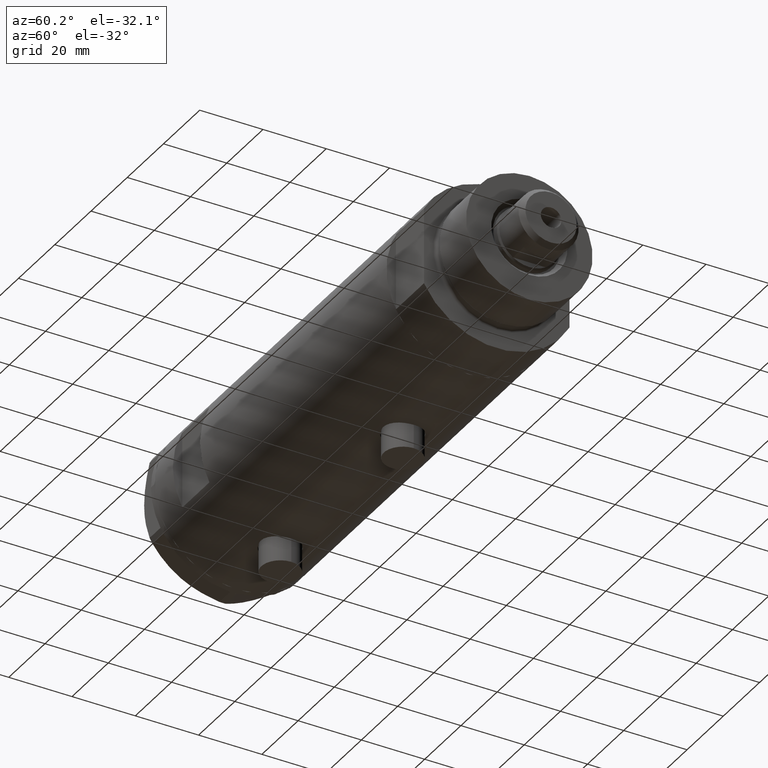
[diagram: clean part render]
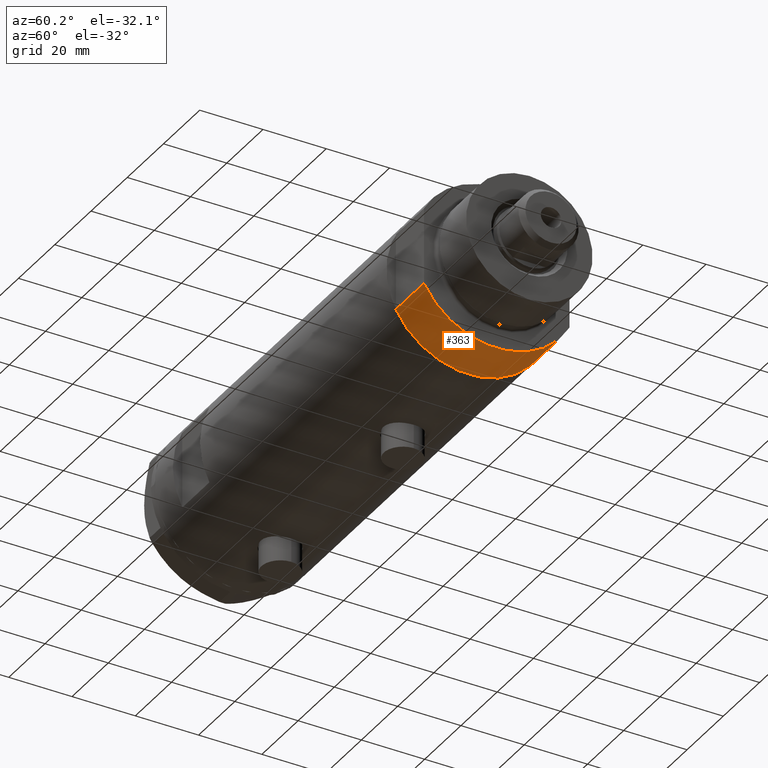
[diagram: same view with one face highlighted and labeled with its STEP entity id]
A machine part, auxiliary view. The second image highlights one B-rep face of the part: STEP entity #363.
In plain terms, the highlighted cylindrical surface (partial cylindrical patch) has radius 26 mm, axis along (-1, -0, 0).
Its self-contained STEP definition (entity closure, byte-faithful):
#98 = CARTESIAN_POINT ( 'NONE',  ( 12.12435565298214790, 23.00000000000000355, 15.50000000000000000 ) ) ;
#129 = VECTOR ( 'NONE', #1213, 1000.000000000000000 ) ;
#298 = DIRECTION ( 'NONE',  ( 0.000000000000000000, 0.000000000000000000, 1.000000000000000000 ) ) ;
#325 = EDGE_LOOP ( 'NONE', ( #3152, #4248, #1930, #3982 ) ) ;
#363 = ADVANCED_FACE ( 'NONE', ( #3960 ), #3731, .T. ) ;
#375 = AXIS2_PLACEMENT_3D ( 'NONE', #4246, #2013, #3517 ) ;
#771 = DIRECTION ( 'NONE',  ( -0.000000000000000000, -0.000000000000000000, -1.000000000000000000 ) ) ;
#822 = EDGE_CURVE ( 'NONE', #1476, #2796, #4867, .T. ) ;
#987 = AXIS2_PLACEMENT_3D ( 'NONE', #3674, #298, #1797 ) ;
#1187 = CARTESIAN_POINT ( 'NONE',  ( 12.12435565298215323, -22.99999999999999645, 0.000000000000000000 ) ) ;
#1213 = DIRECTION ( 'NONE',  ( -0.000000000000000000, -0.000000000000000000, 1.000000000000000000 ) ) ;
#1360 = CARTESIAN_POINT ( 'NONE',  ( 12.12435565298215323, -22.99999999999999645, 15.50000000000000000 ) ) ;
#1476 = VERTEX_POINT ( 'NONE', #3815 ) ;
#1797 = DIRECTION ( 'NONE',  ( 1.000000000000000000, 0.000000000000000000, 0.000000000000000000 ) ) ;
#1839 = AXIS2_PLACEMENT_3D ( 'NONE', #4869, #771, #4790 ) ;
#1930 = ORIENTED_EDGE ( 'NONE', *, *, #2609, .T. ) ;
#2013 = DIRECTION ( 'NONE',  ( 0.000000000000000000, 0.000000000000000000, 1.000000000000000000 ) ) ;
#2521 = CIRCLE ( 'NONE', #375, 26.00000000000000355 ) ;
#2568 = VECTOR ( 'NONE', #3800, 1000.000000000000000 ) ;
#2586 = CIRCLE ( 'NONE', #987, 26.00000000000000355 ) ;
#2609 = EDGE_CURVE ( 'NONE', #4780, #1476, #2586, .T. ) ;
#2650 = CARTESIAN_POINT ( 'NONE',  ( 12.12435565298215323, 23.00000000000000355, 0.000000000000000000 ) ) ;
#2716 = LINE ( 'NONE', #1187, #129 ) ;
#2796 = VERTEX_POINT ( 'NONE', #98 ) ;
#3152 = ORIENTED_EDGE ( 'NONE', *, *, #3779, .F. ) ;
#3517 = DIRECTION ( 'NONE',  ( 1.000000000000000000, 0.000000000000000000, 0.000000000000000000 ) ) ;
#3674 = CARTESIAN_POINT ( 'NONE',  ( 0.000000000000000000, 0.000000000000000000, 0.000000000000000000 ) ) ;
#3731 = CYLINDRICAL_SURFACE ( 'NONE', #1839, 26.00000000000000355 ) ;
#3779 = EDGE_CURVE ( 'NONE', #4288, #2796, #2521, .T. ) ;
#3800 = DIRECTION ( 'NONE',  ( -0.000000000000000000, -0.000000000000000000, 1.000000000000000000 ) ) ;
#3815 = CARTESIAN_POINT ( 'NONE',  ( 12.12435565298214080, 23.00000000000000355, 0.000000000000000000 ) ) ;
#3925 = CARTESIAN_POINT ( 'NONE',  ( 12.12435565298215323, -22.99999999999999645, 0.000000000000000000 ) ) ;
#3960 = FACE_OUTER_BOUND ( 'NONE', #325, .T. ) ;
#3982 = ORIENTED_EDGE ( 'NONE', *, *, #822, .T. ) ;
#4246 = CARTESIAN_POINT ( 'NONE',  ( 0.000000000000000000, 0.000000000000000000, 15.50000000000000000 ) ) ;
#4248 = ORIENTED_EDGE ( 'NONE', *, *, #4618, .F. ) ;
#4288 = VERTEX_POINT ( 'NONE', #1360 ) ;
#4618 = EDGE_CURVE ( 'NONE', #4780, #4288, #2716, .T. ) ;
#4780 = VERTEX_POINT ( 'NONE', #3925 ) ;
#4790 = DIRECTION ( 'NONE',  ( -1.000000000000000000, 0.000000000000000000, 0.000000000000000000 ) ) ;
#4867 = LINE ( 'NONE', #2650, #2568 ) ;
#4869 = CARTESIAN_POINT ( 'NONE',  ( 0.000000000000000000, 0.000000000000000000, 15.50000000000000000 ) ) ;